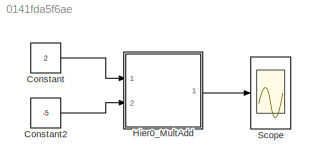
MODEL slx_0141fda5f6ae
KIND model
CONFIG AbsTol = auto
CONFIG FixedStep = auto
CONFIG MaxStep = auto
CONFIG MinStep = auto
CONFIG RelTol = 1e-3
CONFIG SampleTimeConstraint = Unconstrained
CONFIG Solver = FixedStepDiscrete
CONFIG SolverMode = SingleTasking
CONFIG SolverName = FixedStepDiscrete
CONFIG StartTime = 0.0
CONFIG StopTime = 10
BLOCK [Constant] Constant
  OutDataTypeStr = int8
  Value = 2
BLOCK [Constant] Constant2
  OutDataTypeStr = int8
  Value = -5
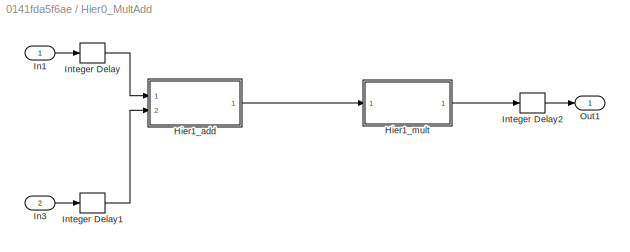
BLOCK [SubSystem] Hier0_MultAdd
  Ports = [2, 1]
  RequestExecContextInheritance = off
  Variant = off
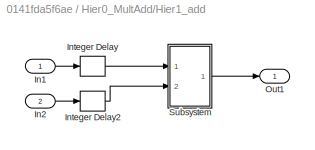
BLOCK [SubSystem] Hier0_MultAdd/Hier1_add
  Ports = [2, 1]
  RequestExecContextInheritance = off
  Variant = off
BLOCK [Inport] Hier0_MultAdd/Hier1_add/In1
  IconDisplay = Port number
BLOCK [Inport] Hier0_MultAdd/Hier1_add/In2
  IconDisplay = Port number
  Port = 2
BLOCK [Delay] Hier0_MultAdd/Hier1_add/Integer Delay
  DelayLength = 1
  InputPortMap = u0
  InputProcessing = Inherited
  Ports = [1, 1]
BLOCK [Delay] Hier0_MultAdd/Hier1_add/Integer Delay2
  DelayLength = 1
  InputPortMap = u0
  InputProcessing = Inherited
  Ports = [1, 1]
BLOCK [Outport] Hier0_MultAdd/Hier1_add/Out1
  IconDisplay = Port number
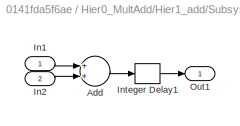
BLOCK [SubSystem] Hier0_MultAdd/Hier1_add/Subsystem
  Ports = [2, 1]
  RequestExecContextInheritance = off
  Variant = off
BLOCK [Sum] Hier0_MultAdd/Hier1_add/Subsystem/Add
  InputSameDT = off
  OutDataTypeStr = Inherit: Inherit via internal rule
  Ports = [2, 1]
  SaturateOnIntegerOverflow = off
BLOCK [Inport] Hier0_MultAdd/Hier1_add/Subsystem/In1
  IconDisplay = Port number
BLOCK [Inport] Hier0_MultAdd/Hier1_add/Subsystem/In2
  IconDisplay = Port number
  Port = 2
BLOCK [Delay] Hier0_MultAdd/Hier1_add/Subsystem/Integer Delay1
  DelayLength = 1
  InputPortMap = u0
  InputProcessing = Inherited
  Ports = [1, 1]
BLOCK [Outport] Hier0_MultAdd/Hier1_add/Subsystem/Out1
  IconDisplay = Port number
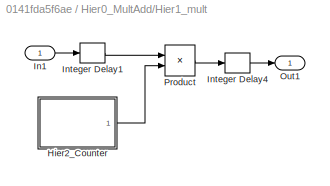
BLOCK [SubSystem] Hier0_MultAdd/Hier1_mult
  Ports = [1, 1]
  RequestExecContextInheritance = off
  Variant = off
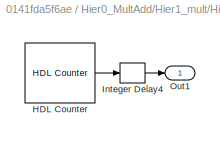
BLOCK [SubSystem] Hier0_MultAdd/Hier1_mult/Hier2_Counter
  Ports = [0, 1]
  RequestExecContextInheritance = off
  Variant = off
BLOCK [Reference] Hier0_MultAdd/Hier1_mult/Hier2_Counter/HDL Counter  REF=hdlsllib/HDL Operations/HDL Counter
  Ports = [0, 1]
  SourceBlock = hdlsllib/HDL Operations/HDL Counter
  SourceType = HDL Counter
BLOCK [Delay] Hier0_MultAdd/Hier1_mult/Hier2_Counter/Integer Delay4
  DelayLength = 1
  InputPortMap = u0
  InputProcessing = Inherited
  Ports = [1, 1]
BLOCK [Outport] Hier0_MultAdd/Hier1_mult/Hier2_Counter/Out1
  IconDisplay = Port number
BLOCK [Inport] Hier0_MultAdd/Hier1_mult/In1
  IconDisplay = Port number
BLOCK [Delay] Hier0_MultAdd/Hier1_mult/Integer Delay1
  DelayLength = 1
  InputPortMap = u0
  InputProcessing = Inherited
  Ports = [1, 1]
BLOCK [Delay] Hier0_MultAdd/Hier1_mult/Integer Delay4
  DelayLength = 1
  InputPortMap = u0
  InputProcessing = Inherited
  Ports = [1, 1]
BLOCK [Outport] Hier0_MultAdd/Hier1_mult/Out1
  IconDisplay = Port number
BLOCK [Product] Hier0_MultAdd/Hier1_mult/Product
  InputSameDT = off
  OutDataTypeStr = Inherit: Inherit via internal rule
  Ports = [2, 1]
  SaturateOnIntegerOverflow = off
BLOCK [Inport] Hier0_MultAdd/In1
  IconDisplay = Port number
BLOCK [Inport] Hier0_MultAdd/In3
  IconDisplay = Port number
  Port = 2
BLOCK [Delay] Hier0_MultAdd/Integer Delay
  DelayLength = 1
  InputPortMap = u0
  InputProcessing = Inherited
  Ports = [1, 1]
BLOCK [Delay] Hier0_MultAdd/Integer Delay1
  DelayLength = 1
  InputPortMap = u0
  InputProcessing = Inherited
  Ports = [1, 1]
BLOCK [Delay] Hier0_MultAdd/Integer Delay2
  DelayLength = 1
  InputPortMap = u0
  InputProcessing = Inherited
  Ports = [1, 1]
BLOCK [Outport] Hier0_MultAdd/Out1
  IconDisplay = Port number
BLOCK [Scope] Scope
  Ports = [1]
  ScopeSpecificationString = Simulink.scopes.TimeScopeBlockCfg('CurrentConfiguration', extmgr.ConfigurationSet(extmgr.Configuration('Core','General UI',true),extmgr.Configuration('Core','Source UI',true),extmgr.Configuration('Sources','WiredSimulink',true,'DataLoggingSaveFormat','StructureWithTime','DataLoggingLimitDataPoints',true,'DataLoggingDecimation','1','DataLoggingDecimateData',true),extmgr.Configuration('Visuals','Tim...<+1665ch>
LINE Constant2:1 -> Hier0_MultAdd:2
LINE Constant:1 -> Hier0_MultAdd:1
LINE Hier0_MultAdd/Hier1_add/In1:1 -> Hier0_MultAdd/Hier1_add/Integer Delay:1
LINE Hier0_MultAdd/Hier1_add/In2:1 -> Hier0_MultAdd/Hier1_add/Integer Delay2:1
LINE Hier0_MultAdd/Hier1_add/Integer Delay2:1 -> Hier0_MultAdd/Hier1_add/Subsystem:2
LINE Hier0_MultAdd/Hier1_add/Integer Delay:1 -> Hier0_MultAdd/Hier1_add/Subsystem:1
LINE Hier0_MultAdd/Hier1_add/Subsystem/Add:1 -> Hier0_MultAdd/Hier1_add/Subsystem/Integer Delay1:1
LINE Hier0_MultAdd/Hier1_add/Subsystem/In1:1 -> Hier0_MultAdd/Hier1_add/Subsystem/Add:1
LINE Hier0_MultAdd/Hier1_add/Subsystem/In2:1 -> Hier0_MultAdd/Hier1_add/Subsystem/Add:2
LINE Hier0_MultAdd/Hier1_add/Subsystem/Integer Delay1:1 -> Hier0_MultAdd/Hier1_add/Subsystem/Out1:1
LINE Hier0_MultAdd/Hier1_add/Subsystem:1 -> Hier0_MultAdd/Hier1_add/Out1:1
LINE Hier0_MultAdd/Hier1_add:1 -> Hier0_MultAdd/Hier1_mult:1
LINE Hier0_MultAdd/Hier1_mult/Hier2_Counter/HDL Counter:1 -> Hier0_MultAdd/Hier1_mult/Hier2_Counter/Integer Delay4:1
LINE Hier0_MultAdd/Hier1_mult/Hier2_Counter/Integer Delay4:1 -> Hier0_MultAdd/Hier1_mult/Hier2_Counter/Out1:1
LINE Hier0_MultAdd/Hier1_mult/Hier2_Counter:1 -> Hier0_MultAdd/Hier1_mult/Product:2
LINE Hier0_MultAdd/Hier1_mult/In1:1 -> Hier0_MultAdd/Hier1_mult/Integer Delay1:1
LINE Hier0_MultAdd/Hier1_mult/Integer Delay1:1 -> Hier0_MultAdd/Hier1_mult/Product:1
LINE Hier0_MultAdd/Hier1_mult/Integer Delay4:1 -> Hier0_MultAdd/Hier1_mult/Out1:1
LINE Hier0_MultAdd/Hier1_mult/Product:1 -> Hier0_MultAdd/Hier1_mult/Integer Delay4:1
LINE Hier0_MultAdd/Hier1_mult:1 -> Hier0_MultAdd/Integer Delay2:1
LINE Hier0_MultAdd/In1:1 -> Hier0_MultAdd/Integer Delay:1
LINE Hier0_MultAdd/In3:1 -> Hier0_MultAdd/Integer Delay1:1
LINE Hier0_MultAdd/Integer Delay1:1 -> Hier0_MultAdd/Hier1_add:2
LINE Hier0_MultAdd/Integer Delay2:1 -> Hier0_MultAdd/Out1:1
LINE Hier0_MultAdd/Integer Delay:1 -> Hier0_MultAdd/Hier1_add:1
LINE Hier0_MultAdd:1 -> Scope:1
